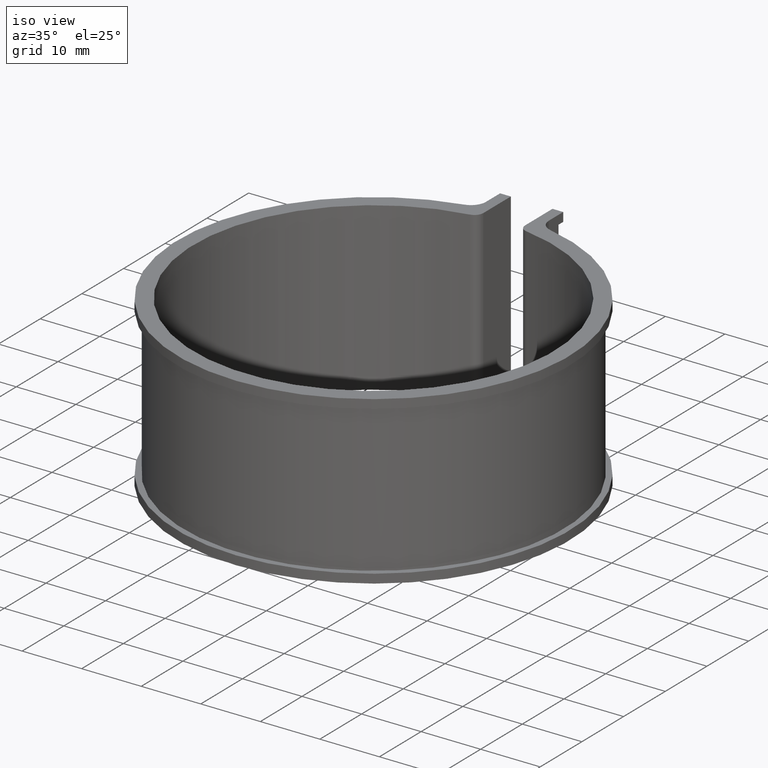
[diagram: clean part render]
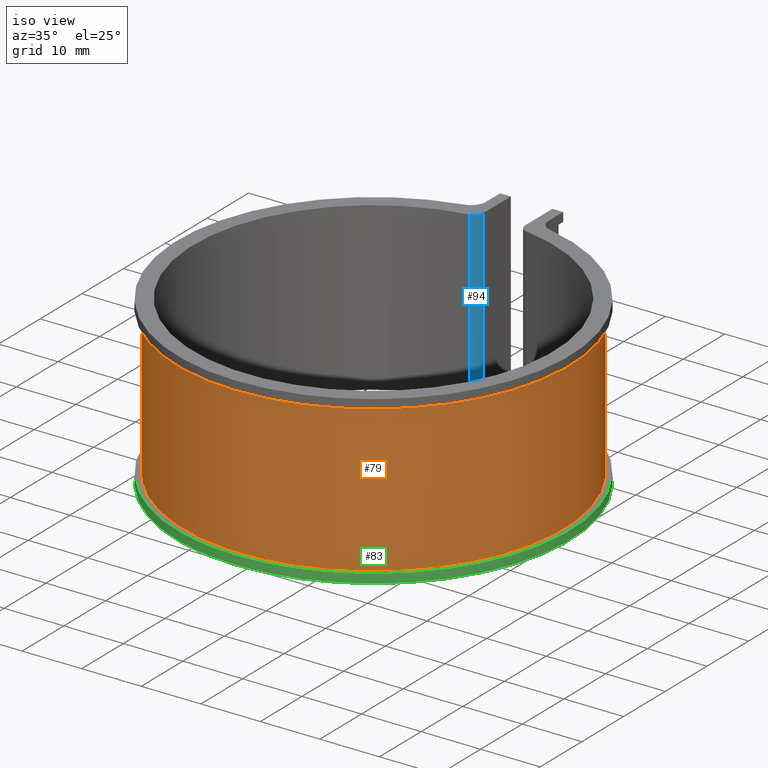
[diagram: same view with three faces highlighted in distinct colors, each labeled with its STEP entity id]
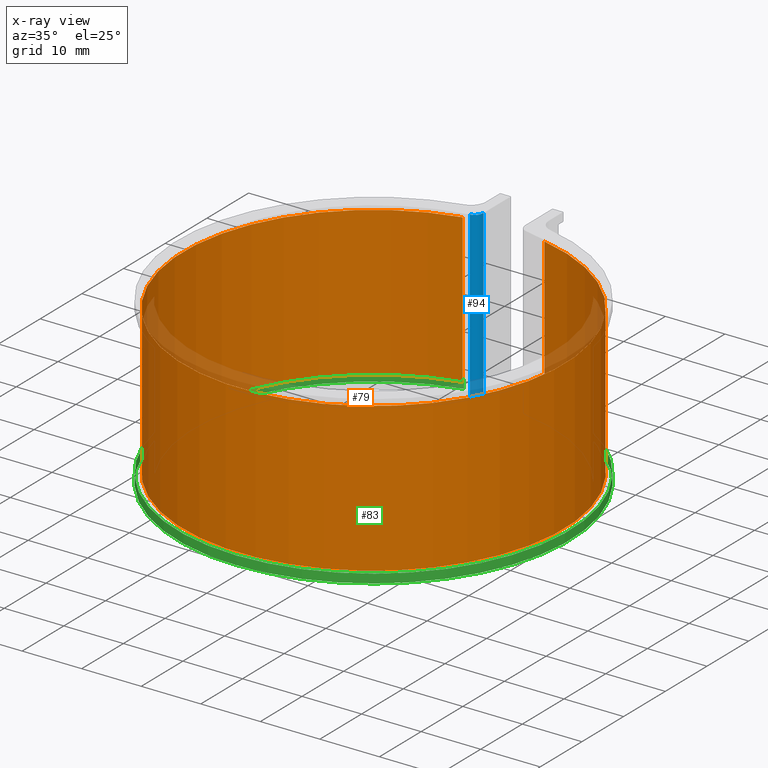
[diagram: x-ray of the same camera — body ghosted, the three highlighted faces saturated]
A machine part, iso view with three faces highlighted in distinct colors.
The next image is the same camera in x-ray (body ghosted, the three faces saturated) — at least one of them is partly hidden behind the body in this view.
Their STEP definitions:

[orange] entity #79 — the highlighted cylindrical surface (partial cylindrical patch) has radius 31.95 mm, axis along (0, 0, -1).
#79 = ADVANCED_FACE( '', ( #110 ), #111, .T. );
#110 = FACE_OUTER_BOUND( '', #162, .T. );
#111 = CYLINDRICAL_SURFACE( '', #163, 31.9500000000000 );
#162 = EDGE_LOOP( '', ( #246, #247, #248, #249 ) );
#163 = AXIS2_PLACEMENT_3D( '', #250, #251, #252 );
#246 = ORIENTED_EDGE( '', *, *, #434, .T. );
#247 = ORIENTED_EDGE( '', *, *, #453, .T. );
#248 = ORIENTED_EDGE( '', *, *, #454, .F. );
#249 = ORIENTED_EDGE( '', *, *, #455, .T. );
#250 = CARTESIAN_POINT( '', ( 4.33680868994202E-016, 3.46944695195361E-015, -25.0000000000000 ) );
#251 = DIRECTION( '', ( 0.000000000000000, 0.000000000000000, -1.00000000000000 ) );
#252 = DIRECTION( '', ( -0.115702479338843, -0.993283915240172, 0.000000000000000 ) );
#434 = EDGE_CURVE( '', #513, #511, #514, .T. );
#453 = EDGE_CURVE( '', #511, #548, #549, .T. );
#454 = EDGE_CURVE( '', #550, #548, #551, .T. );
#455 = EDGE_CURVE( '', #550, #513, #552, .F. );
#511 = VERTEX_POINT( '', #636 );
#513 = VERTEX_POINT( '', #638 );
#514 = CIRCLE( '', #639, 31.9500000000000 );
#548 = VERTEX_POINT( '', #687 );
#549 = LINE( '', #688, #689 );
#550 = VERTEX_POINT( '', #690 );
#551 = CIRCLE( '', #691, 31.9500000000000 );
#552 = LINE( '', #692, #693 );
#636 = CARTESIAN_POINT( '', ( 6.85622317596567, 31.2056838374254, -25.0000000000000 ) );
#638 = CARTESIAN_POINT( '', ( -6.85622317596566, 31.2056838374254, -25.0000000000000 ) );
#639 = AXIS2_PLACEMENT_3D( '', #796, #797, #798 );
#687 = CARTESIAN_POINT( '', ( 6.85622317596567, 31.2056838374254, 0.000000000000000 ) );
#688 = CARTESIAN_POINT( '', ( 6.85622317596567, 31.2056838374254, -25.0000000000000 ) );
#689 = VECTOR( '', #825, 1000.00000000000 );
#690 = CARTESIAN_POINT( '', ( -6.85622317596566, 31.2056838374254, 0.000000000000000 ) );
#691 = AXIS2_PLACEMENT_3D( '', #826, #827, #828 );
#692 = CARTESIAN_POINT( '', ( -6.85622317596566, 31.2056838374254, -25.0000000000000 ) );
#693 = VECTOR( '', #829, 1000.00000000000 );
#796 = CARTESIAN_POINT( '', ( 4.33680868994202E-016, 3.46944695195361E-015, -25.0000000000000 ) );
#797 = DIRECTION( '', ( 0.000000000000000, 0.000000000000000, 1.00000000000000 ) );
#798 = DIRECTION( '', ( 1.00000000000000, 2.77555756156289E-017, 0.000000000000000 ) );
#825 = DIRECTION( '', ( 0.000000000000000, 0.000000000000000, 1.00000000000000 ) );
#826 = CARTESIAN_POINT( '', ( 4.33680868994202E-016, 3.46944695195361E-015, 0.000000000000000 ) );
#827 = DIRECTION( '', ( 0.000000000000000, 0.000000000000000, 1.00000000000000 ) );
#828 = DIRECTION( '', ( 1.00000000000000, 2.77555756156289E-017, 0.000000000000000 ) );
#829 = DIRECTION( '', ( 0.000000000000000, 0.000000000000000, 1.00000000000000 ) );

[blue] entity #94 — the highlighted cylindrical surface (edge-blend (fillet) strip) has radius 1.5 mm, axis along (0, 0, -1).
#94 = ADVANCED_FACE( '', ( #140 ), #141, .T. );
#140 = FACE_OUTER_BOUND( '', #192, .T. );
#141 = CYLINDRICAL_SURFACE( '', #193, 1.50000000000000 );
#192 = EDGE_LOOP( '', ( #375, #376, #377, #378 ) );
#193 = AXIS2_PLACEMENT_3D( '', #379, #380, #381 );
#375 = ORIENTED_EDGE( '', *, *, #493, .F. );
#376 = ORIENTED_EDGE( '', *, *, #481, .F. );
#377 = ORIENTED_EDGE( '', *, *, #485, .F. );
#378 = ORIENTED_EDGE( '', *, *, #479, .F. );
#379 = CARTESIAN_POINT( '', ( -4.99999999999999, 31.3538275175456, -25.0000000000000 ) );
#380 = DIRECTION( '', ( 0.000000000000000, 0.000000000000000, -1.00000000000000 ) );
#381 = DIRECTION( '', ( 1.00000000000000, 0.000000000000000, 0.000000000000000 ) );
#479 = EDGE_CURVE( '', #591, #587, #593, .T. );
#481 = EDGE_CURVE( '', #594, #596, #597, .F. );
#485 = EDGE_CURVE( '', #587, #594, #601, .T. );
#493 = EDGE_CURVE( '', #596, #591, #613, .F. );
#587 = VERTEX_POINT( '', #739 );
#591 = VERTEX_POINT( '', #744 );
#593 = LINE( '', #746, #747 );
#594 = VERTEX_POINT( '', #748 );
#596 = VERTEX_POINT( '', #751 );
#597 = LINE( '', #752, #753 );
#601 = CIRCLE( '', #758, 1.50000000000000 );
#613 = CIRCLE( '', #775, 1.50000000000000 );
#739 = CARTESIAN_POINT( '', ( -4.76377952755905, 29.8725443277403, 1.50000000000000 ) );
#744 = CARTESIAN_POINT( '', ( -4.76377952755905, 29.8725443277403, -26.5000000000000 ) );
#746 = CARTESIAN_POINT( '', ( -4.76377952755905, 29.8725443277403, -25.0000000000000 ) );
#747 = VECTOR( '', #875, 1000.00000000000 );
#748 = CARTESIAN_POINT( '', ( -3.50000000000000, 31.3538275175456, 1.50000000000000 ) );
#751 = CARTESIAN_POINT( '', ( -3.50000000000000, 31.3538275175456, -26.5000000000000 ) );
#752 = CARTESIAN_POINT( '', ( -3.50000000000000, 31.3538275175456, -25.0000000000000 ) );
#753 = VECTOR( '', #877, 1000.00000000000 );
#758 = AXIS2_PLACEMENT_3D( '', #885, #886, #887 );
#775 = AXIS2_PLACEMENT_3D( '', #899, #900, #901 );
#875 = DIRECTION( '', ( 0.000000000000000, 0.000000000000000, 1.00000000000000 ) );
#877 = DIRECTION( '', ( 0.000000000000000, 0.000000000000000, 1.00000000000000 ) );
#885 = CARTESIAN_POINT( '', ( -4.99999999999999, 31.3538275175456, 1.50000000000000 ) );
#886 = DIRECTION( '', ( 0.000000000000000, 0.000000000000000, 1.00000000000000 ) );
#887 = DIRECTION( '', ( 1.00000000000000, 0.000000000000000, 0.000000000000000 ) );
#899 = CARTESIAN_POINT( '', ( -4.99999999999999, 31.3538275175456, -26.5000000000000 ) );
#900 = DIRECTION( '', ( 0.000000000000000, 0.000000000000000, 1.00000000000000 ) );
#901 = DIRECTION( '', ( 1.00000000000000, 0.000000000000000, 0.000000000000000 ) );

[green] entity #83 — the highlighted cylindrical surface (partial cylindrical patch) has radius 32.9 mm, axis along (0, 0, -1).
#83 = ADVANCED_FACE( '', ( #118 ), #119, .T. );
#118 = FACE_OUTER_BOUND( '', #170, .T. );
#119 = CYLINDRICAL_SURFACE( '', #171, 32.9000000000000 );
#170 = EDGE_LOOP( '', ( #282, #283, #284, #285 ) );
#171 = AXIS2_PLACEMENT_3D( '', #286, #287, #288 );
#282 = ORIENTED_EDGE( '', *, *, #467, .T. );
#283 = ORIENTED_EDGE( '', *, *, #468, .T. );
#284 = ORIENTED_EDGE( '', *, *, #440, .F. );
#285 = ORIENTED_EDGE( '', *, *, #469, .T. );
#286 = CARTESIAN_POINT( '', ( 0.000000000000000, 0.000000000000000, -26.5000000000000 ) );
#287 = DIRECTION( '', ( 0.000000000000000, 0.000000000000000, -1.00000000000000 ) );
#288 = DIRECTION( '', ( 0.000000000000000, 1.00000000000000, 0.000000000000000 ) );
#440 = EDGE_CURVE( '', #523, #525, #526, .T. );
#467 = EDGE_CURVE( '', #572, #573, #574, .T. );
#468 = EDGE_CURVE( '', #573, #525, #575, .T. );
#469 = EDGE_CURVE( '', #523, #572, #576, .F. );
#523 = VERTEX_POINT( '', #651 );
#525 = VERTEX_POINT( '', #653 );
#526 = CIRCLE( '', #654, 32.9000000000000 );
#572 = VERTEX_POINT( '', #719 );
#573 = VERTEX_POINT( '', #720 );
#574 = CIRCLE( '', #721, 32.9000000000000 );
#575 = LINE( '', #722, #723 );
#576 = LINE( '', #724, #725 );
#651 = CARTESIAN_POINT( '', ( -7.24915254237288, 32.0914285661671, -25.0000000000000 ) );
#653 = CARTESIAN_POINT( '', ( 7.24915254237288, 32.0914285661671, -25.0000000000000 ) );
#654 = AXIS2_PLACEMENT_3D( '', #808, #809, #810 );
#719 = CARTESIAN_POINT( '', ( -7.24915254237288, 32.0914285661671, -26.5000000000000 ) );
#720 = CARTESIAN_POINT( '', ( 7.24915254237288, 32.0914285661671, -26.5000000000000 ) );
#721 = AXIS2_PLACEMENT_3D( '', #851, #852, #853 );
#722 = CARTESIAN_POINT( '', ( 7.24915254237288, 32.0914285661671, -26.5000000000000 ) );
#723 = VECTOR( '', #854, 1000.00000000000 );
#724 = CARTESIAN_POINT( '', ( -7.24915254237288, 32.0914285661671, -26.5000000000000 ) );
#725 = VECTOR( '', #855, 1000.00000000000 );
#808 = CARTESIAN_POINT( '', ( 0.000000000000000, 0.000000000000000, -25.0000000000000 ) );
#809 = DIRECTION( '', ( 0.000000000000000, 0.000000000000000, 1.00000000000000 ) );
#810 = DIRECTION( '', ( 1.00000000000000, 0.000000000000000, 0.000000000000000 ) );
#851 = CARTESIAN_POINT( '', ( 0.000000000000000, 0.000000000000000, -26.5000000000000 ) );
#852 = DIRECTION( '', ( 0.000000000000000, 0.000000000000000, 1.00000000000000 ) );
#853 = DIRECTION( '', ( 1.00000000000000, 0.000000000000000, 0.000000000000000 ) );
#854 = DIRECTION( '', ( 0.000000000000000, 0.000000000000000, 1.00000000000000 ) );
#855 = DIRECTION( '', ( 0.000000000000000, 0.000000000000000, 1.00000000000000 ) );